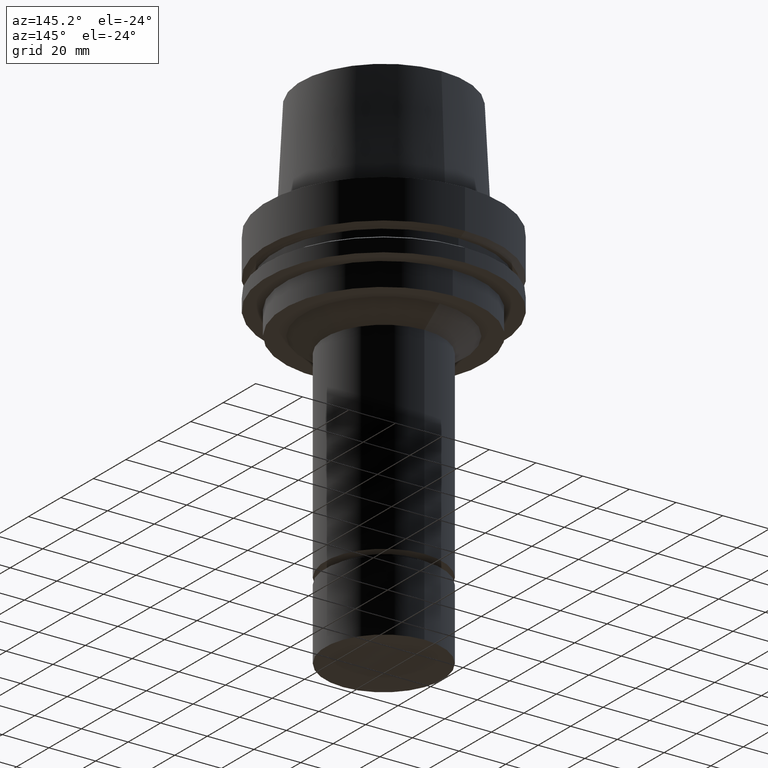
[diagram: clean part render]
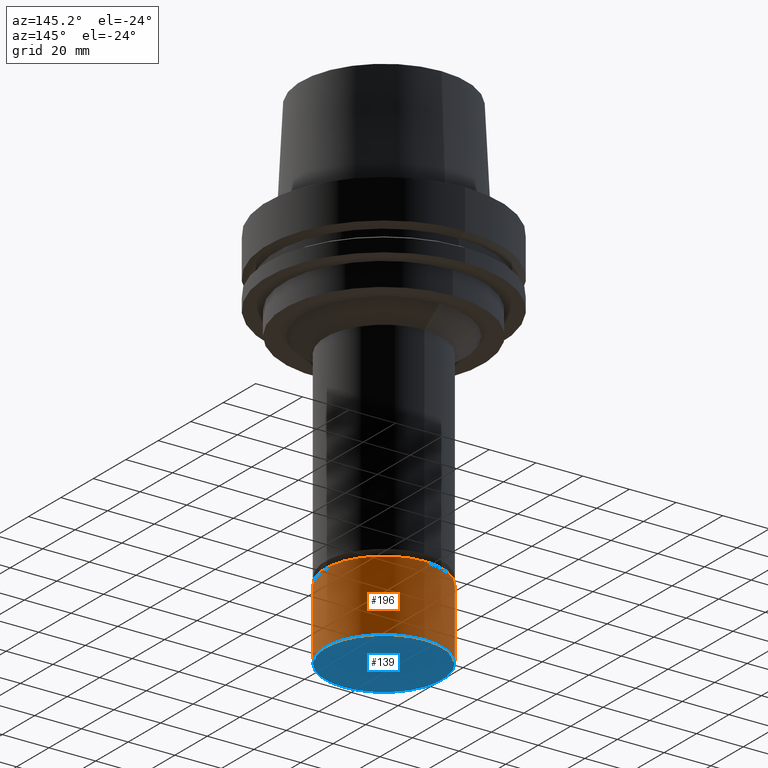
[diagram: same view with the hole feature highlighted: cylindrical wall and planar end face, labeled with their STEP entity ids]
A machine part, auxiliary view. The highlighted faces form one hole feature of diameter 50 mm: the cylindrical wall (entity #196, orange) and its adjacent planar end face (entity #139, blue) — they share a circular edge in the B-rep.
Wall:
#86=EDGE_CURVE('Unnamed[1]',#230,#230,#231,.T.);
#159=EDGE_CURVE('Unnamed[1]',#342,#342,#343,.T.);
#196=ADVANCED_FACE('Unnamed[1]',(#398,#399),#400,.T.);
#230=VERTEX_POINT('',#432);
#231=CIRCLE('',#433,25.0);
#342=VERTEX_POINT('',#572);
#343=CIRCLE('',#573,25.0);
#398=FACE_BOUND('',#641,.T.);
#399=FACE_BOUND('',#642,.T.);
#400=CYLINDRICAL_SURFACE('',#643,25.0);
#432=CARTESIAN_POINT('',(8.25411942625316E-015,25.0,-134.8));
#433=AXIS2_PLACEMENT_3D('',#664,#665,#666);
#572=CARTESIAN_POINT('',(1.01033360929657E-014,25.0,-165.0));
#573=AXIS2_PLACEMENT_3D('',#788,#789,#790);
#641=EDGE_LOOP('',(#849));
#642=EDGE_LOOP('',(#850));
#643=AXIS2_PLACEMENT_3D('',#851,#852,#853);
#664=CARTESIAN_POINT('',(8.25411942625316E-015,1.65082388525063E-014,-134.8));
#665=DIRECTION('',(6.12323399573677E-017,1.22464679914735E-016,-1.0));
#666=DIRECTION('',(-1.23259516440783E-032,1.0,1.22464679914735E-016));
#788=CARTESIAN_POINT('',(1.01033360929657E-014,2.02066721859313E-014,-165.0));
#789=DIRECTION('',(6.12323399573677E-017,1.22464679914735E-016,-1.0));
#790=DIRECTION('',(-1.23259516440783E-032,1.0,1.22464679914735E-016));
#849=ORIENTED_EDGE('',*,*,#159,.F.);
#850=ORIENTED_EDGE('',*,*,#86,.T.);
#851=CARTESIAN_POINT('',(9.17872775960941E-015,1.83574555192188E-014,-149.9));
#852=DIRECTION('',(6.12323399573677E-017,1.22464679914735E-016,-1.0));
#853=DIRECTION('',(-1.23259516440783E-032,1.0,1.22464679914735E-016));
End face:
#139=ADVANCED_FACE('Unnamed[1]',(#311),#312,.T.);
#159=EDGE_CURVE('Unnamed[1]',#342,#342,#343,.T.);
#311=FACE_OUTER_BOUND('',#533,.T.);
#312=PLANE('',#534);
#342=VERTEX_POINT('',#572);
#343=CIRCLE('',#573,25.0);
#533=EDGE_LOOP('',(#752));
#534=AXIS2_PLACEMENT_3D('',#753,#754,#755);
#572=CARTESIAN_POINT('',(1.01033360929657E-014,25.0,-165.0));
#573=AXIS2_PLACEMENT_3D('',#788,#789,#790);
#752=ORIENTED_EDGE('',*,*,#159,.T.);
#753=CARTESIAN_POINT('',(1.01033360929657E-014,12.5,-165.0));
#754=DIRECTION('',(6.12323399573677E-017,1.22464679914735E-016,-1.0));
#755=DIRECTION('',(-1.23259516440783E-032,1.0,1.22464679914735E-016));
#788=CARTESIAN_POINT('',(1.01033360929657E-014,2.02066721859313E-014,-165.0));
#789=DIRECTION('',(6.12323399573677E-017,1.22464679914735E-016,-1.0));
#790=DIRECTION('',(-1.23259516440783E-032,1.0,1.22464679914735E-016));